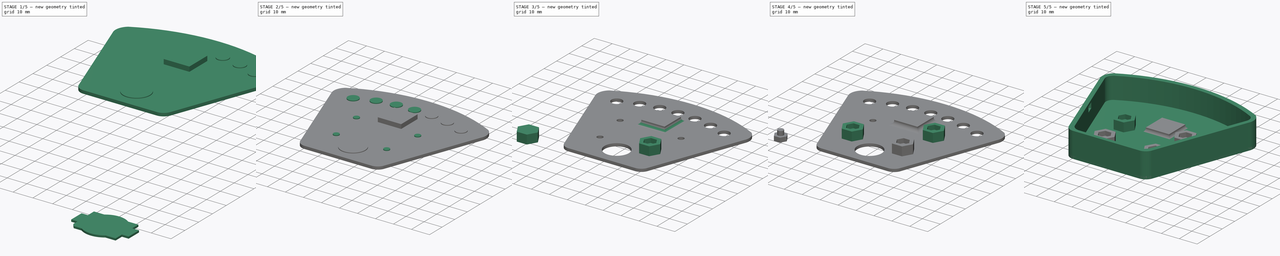
[diagram: build sequence overview — one tinted view per stage of 5, left to right]
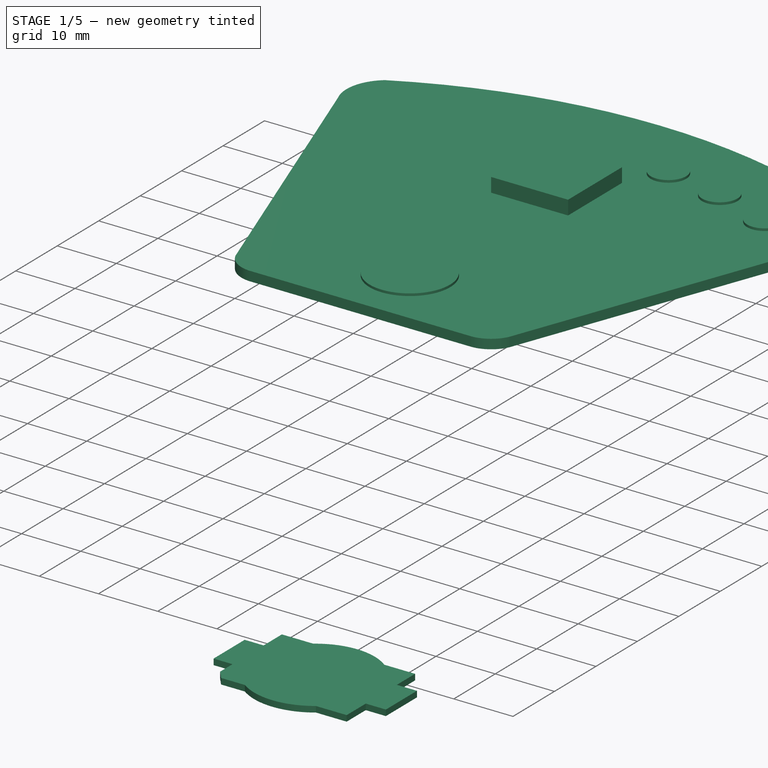
[diagram: stage 1 of 5 — iso view after this stage's code; geometry added in this stage tinted green]
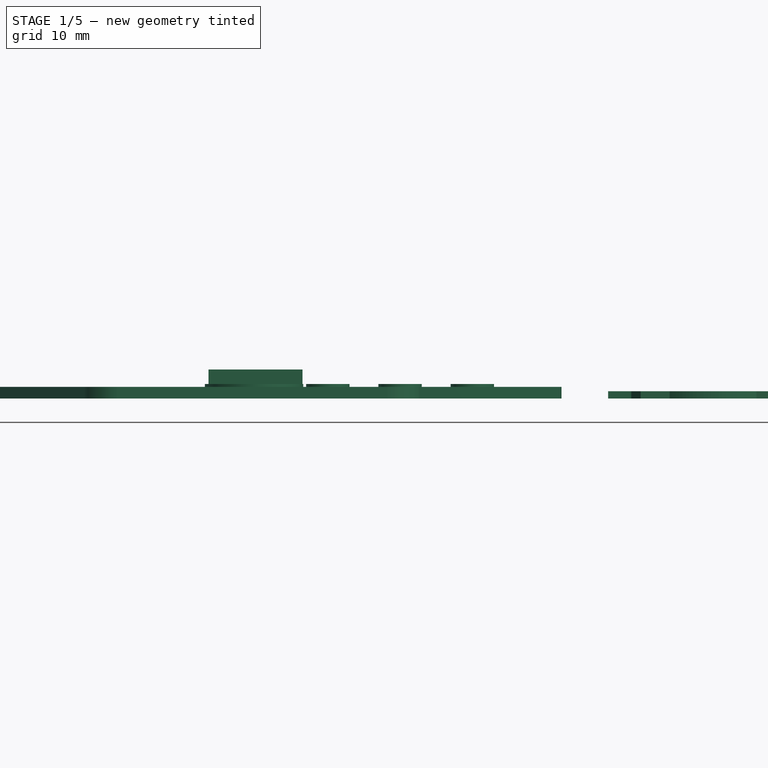
[diagram: stage 1 of 5 — front view after this stage's code; geometry added in this stage tinted green]
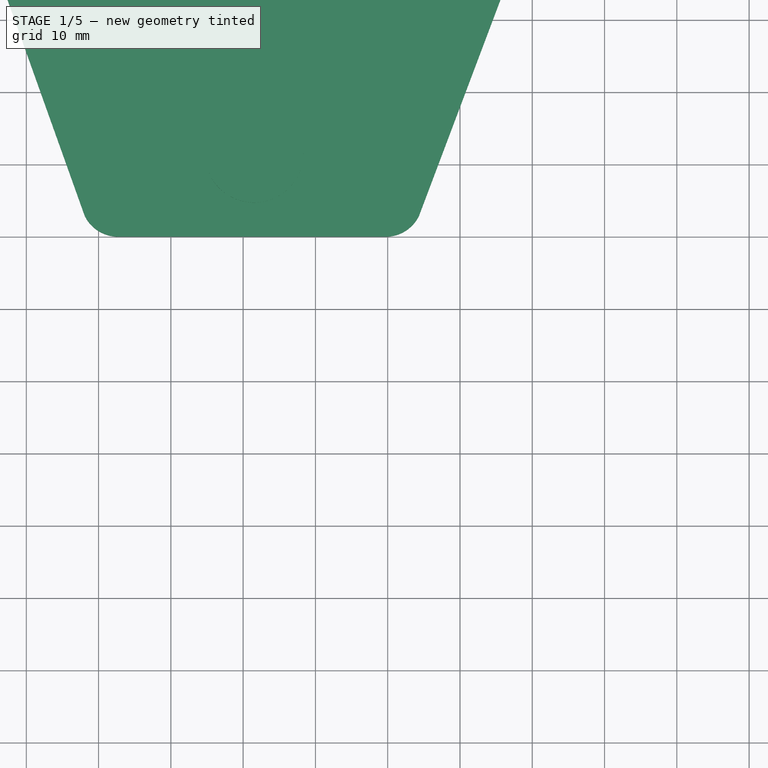
[diagram: stage 1 of 5 — top view after this stage's code; geometry added in this stage tinted green]
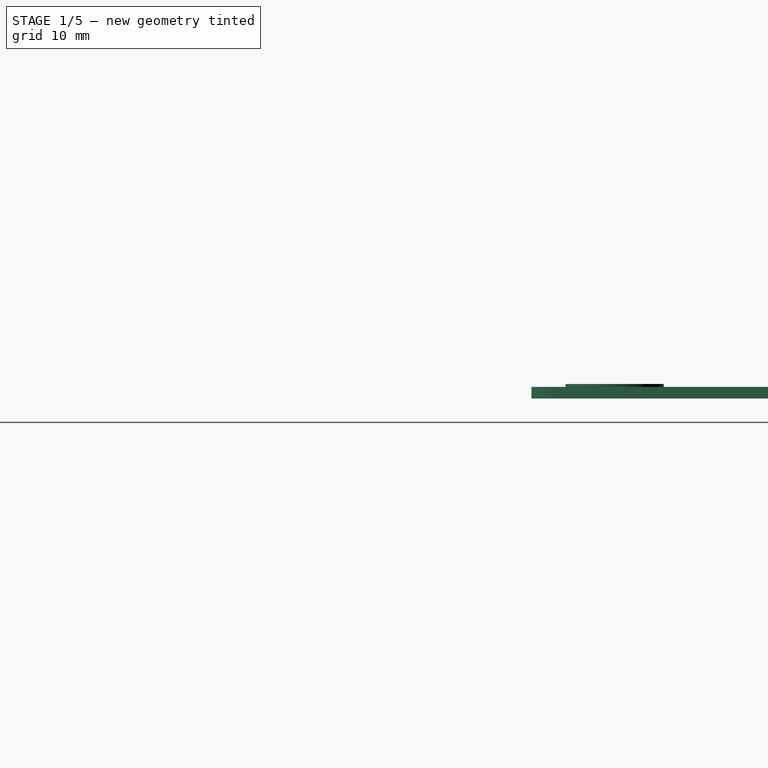
[diagram: stage 1 of 5 — right view after this stage's code; geometry added in this stage tinted green]
FCSTD DOCUMENT  (FreeCAD 1.0R38641 +678 (Git))
Label: catch_me_bcl_case
License: Creative Commons Attribution 4.0
LicenseURL: https://creativecommons.org/licenses/by/4.0/
objects: Part::Cylinder×16, Sketcher::SketchObject×12, PartDesign::Pad×12, PartDesign::Body×12, Part::Cut×7, Part::MultiFuse×7, Part::Box×3, TechDraw::DrawSVGTemplate×1, TechDraw::DrawViewDraft×1, TechDraw::DrawPage×1, Part::Fillet×1
note: 106 computed .brp shape members not serialized (recipe doc carries the construction recipe); baked Part::Feature solids carry a one-line shape summary decoded from their .brp

FEATURE [TechDraw::DrawViewDraft] DraftView
  Direction = (0.052071,0.019379,0.998455)
  FontSize = 12
  LineSpacing = 1
  LineStyle = Solid
  LineWidth = 0.35
  LockPosition = false
  OverrideStyle = false
  Rotation = 0
  ScaleType = 2
  Source = -> Fusion
  Symbol = <blob: 43248 chars omitted>
  X = 105
  Y = 148.5
FEATURE [TechDraw::DrawPage] Page
  KeepUpdated = true
  NextBalloonIndex = 1
  ProjectionType = 0
  Template = -> Template
  Views = -> [DraftView]
FEATURE [Sketcher::SketchObject] Sketch014
  ArcFitTolerance = 0
  AttachmentSupport = -> [XY_Plane014]
  FullyConstrained = true
  MakeInternals = false
  MapMode = 5
  sketch-geometry (8):
    g0: ArcOfCircle CenterX=6.36582 CenterY=56.3662 CenterZ=0 NormalX=0 NormalY=0 NormalZ=1 AngleXU=0 Radius=6.98955 StartAngle=2.23959 EndAngle=3.56726
    g1: ArcOfCircle CenterX=22.682 CenterY=5.10521 CenterZ=0 NormalX=0 NormalY=0 NormalZ=1 AngleXU=0 Radius=5.10735 StartAngle=3.59162 EndAngle=4.74137
    g2: LineSegment StartX=18.0831 StartY=2.88357 StartZ=0 EndX=0 EndY=53.48 EndZ=0
    g3: ArcOfCircle CenterX=41.701 CenterY=-14.9697 CenterZ=0 NormalX=0 NormalY=0 NormalZ=1 AngleXU=0 Radius=86.4574 StartAngle=1.09412 EndAngle=2.04747
    g4: ArcOfCircle CenterX=77.125 CenterY=56.3818 CenterZ=0 NormalX=0 NormalY=0 NormalZ=1 AngleXU=0 Radius=6.92257 StartAngle=5.85065 EndAngle=7.19385
    g5: LineSegment StartX=83.41 StartY=53.48 StartZ=0 EndX=64.33 EndY=2.88 EndZ=0
    g6: ArcOfCircle CenterX=59.7438 CenterY=5.087 CenterZ=0 NormalX=0 NormalY=0 NormalZ=1 AngleXU=0 Radius=5.08964 StartAngle=4.68021 EndAngle=5.83467
    g7: LineSegment StartX=22.83 StartY=-9e-16 StartZ=0 EndX=59.58 EndY=2.66e-14 EndZ=0
  constraints (29):
    c: DistanceY(g1) = 0
    c: DistanceX(g1) = 22.83
    c: DistanceY(g1) = 2.88357
    c: DistanceX(g1) = 18.0831
    c: Coincident(g1,g2)
    c: DistanceX(g2) = 0
    c: DistanceY(g2) = 53.48
    c: Coincident(g0,g2)
    c: DistanceY(g0) = 61.85
    c: DistanceX(g0) = 2.032
    c: Coincident(g0,g3)
    c: DistanceY(g3) = 61.85
    c: DistanceX(g3) = 81.37
    c: Coincident(g4,g3)
    c: DistanceY(g4) = 53.48
    c: DistanceX(g4) = 83.41
    c: Coincident(g4,g5)
    c: DistanceX(g5) = 64.33
    c: DistanceY(g5) = 2.88
    c: Coincident(g5,g6)
    c: DistanceX(g6) = 59.58
    c: DistanceY(g6) = 0
    c: Coincident(g1,g7)
    c: Coincident(g6,g7)
    c: Angle(g6) = 1.15446
    c: Angle(g1) = 1.14976
    c: Angle(g3) = 0.953349
    c: Angle(g0) = 1.32767
    c: Angle(g4) = 1.34321
FEATURE [PartDesign::Pad] Pad014
  Direction = (0,0,1)
  Length = 1.6
  Length2 = 10
  Profile = -> Sketch014
  ReferenceAxis = -> Sketch014 [N_Axis]
  Refine = true
  Suppressed = false
  Type = 0
FEATURE [Part::Cylinder] Cylinder020
  Angle = 360
  AttacherType = Attacher::AttachEngine3D
  FirstAngle = 0
  Height = 2
  Placement = pos=(51.71,59.3,0) rot=(0,0,1;0rad)
  Radius = 3
  SecondAngle = 0
FEATURE [Part::Cylinder] Cylinder021
  Angle = 360
  AttacherType = Attacher::AttachEngine3D
  FirstAngle = 0
  Height = 2
  Placement = pos=(61.71,57.4,0) rot=(0,0,1;0rad)
  Radius = 3
  SecondAngle = 0
FEATURE [Part::Cylinder] Cylinder022
  Angle = 360
  AttacherType = Attacher::AttachEngine3D
  FirstAngle = 0
  Height = 2
  Placement = pos=(71.71,54,0) rot=(0,0,1;0rad)
  Radius = 3
  SecondAngle = 0
FEATURE [Part::Cylinder] Cylinder023
  Angle = 360
  AttacherType = Attacher::AttachEngine3D
  FirstAngle = 0
  Height = 2
  Placement = pos=(41.51,11.5,0) rot=(0,0,1;0rad)
  Radius = 6.8
  SecondAngle = 0
FEATURE [Part::Box] Box001  label="Cube001"
  AttacherType = Attacher::AttachEngine3D
  Height = 3
  Length = 11
  Placement = pos=(36.21,41.1,0) rot=(0,0,1;0rad)
  Width = 11
FEATURE [Sketcher::SketchObject] Sketch015
  ArcFitTolerance = 1e-06
  FullyConstrained = true
  MakeInternals = false
  sketch-geometry (17):
    g0: LineSegment StartX=90.5 StartY=-105.8 StartZ=0 EndX=90.5 EndY=-98.3 EndZ=0
    g1: LineSegment StartX=90.5 StartY=-98.3 StartZ=0 EndX=93.7 EndY=-98.3 EndZ=0
    g2: LineSegment StartX=93.7 StartY=-98.3 StartZ=0 EndX=93.7 EndY=-93.9 EndZ=0
    g3: LineSegment StartX=116.2 StartY=-93.9 StartZ=0 EndX=116.2 EndY=-98.3 EndZ=0
    g4: LineSegment StartX=116.2 StartY=-98.3 StartZ=0 EndX=119.6 EndY=-98.3 EndZ=0
    g5: LineSegment StartX=119.6 StartY=-98.3 StartZ=0 EndX=119.6 EndY=-105.8 EndZ=0
    g6: LineSegment StartX=119.6 StartY=-105.8 StartZ=0 EndX=116.2 EndY=-105.8 EndZ=0
    g7: LineSegment StartX=116.2 StartY=-105.8 StartZ=0 EndX=116.2 EndY=-110.4 EndZ=0
    g8: LineSegment StartX=94.99 StartY=-110.4 StartZ=0 EndX=93.7 EndY=-108.8 EndZ=0
    g9: LineSegment StartX=93.7 StartY=-108.8 StartZ=0 EndX=93.7 EndY=-105.8 EndZ=0
    g10: LineSegment StartX=93.7 StartY=-105.8 StartZ=0 EndX=90.5 EndY=-105.8 EndZ=0
    g11: LineSegment StartX=93.7 StartY=-93.9 StartZ=0 EndX=99 EndY=-93.9 EndZ=0
    g12: LineSegment StartX=111 StartY=-93.9 StartZ=0 EndX=116.2 EndY=-93.9 EndZ=0
    g13: LineSegment StartX=116.2 StartY=-110.4 StartZ=0 EndX=111 EndY=-110.4 EndZ=0
    g14: LineSegment StartX=99 StartY=-110.4 StartZ=0 EndX=94.99 EndY=-110.4 EndZ=0
    g15: ArcOfCircle CenterX=105 CenterY=-101.9 CenterZ=0 NormalX=0 NormalY=0 NormalZ=1 AngleXU=0 Radius=10 StartAngle=0.927295 EndAngle=2.2143
    g16: ArcOfCircle CenterX=105 CenterY=-101.9 CenterZ=0 NormalX=0 NormalY=0 NormalZ=1 AngleXU=0 Radius=10.4043 StartAngle=4.09773 EndAngle=5.32705
  constraints (52):
    c: Vertical(g0)
    c: Coincident(g1,g0)
    c: Horizontal(g1)
    c: Vertical(g2)
    c: Vertical(g3)
    c: Horizontal(g4)
    c: Vertical(g5)
    c: Horizontal(g6)
    c: Vertical(g7)
    c: Coincident(g13,g7)
    c: Coincident(g8,g14)
    c: Vertical(g9)
    c: Coincident(g10,g0)
    c: Horizontal(g10)
    c: Coincident(g12,g3)
    c: Coincident(g3,g4)
    c: Coincident(g4,g5)
    c: Coincident(g5,g6)
    c: Coincident(g6,g7)
    c: Coincident(g2,g11)
    c: Coincident(g1,g2)
    c: Coincident(g9,g10)
    c: Coincident(g8,g9)
    c: Horizontal(g11)
    c: Horizontal(g12)
    c: Horizontal(g13)
    c: Horizontal(g14)
    c: Coincident(g11,g15)
    c: Coincident(g13,g16)
    c: Coincident(g14,g16)
    c: Coincident(g12,g15)
    c: DistanceX(g0) = 90.5
    c: DistanceY(g0) = -98.3
    c: DistanceX(g2) = 93.7
    c: DistanceY(g2) = -93.9
    c: DistanceX(g11) = 99
    c: DistanceX(g3) = 116.2
    c: DistanceX(g4) = 119.6
    c: DistanceY(g5) = -105.8
    c: DistanceX(g6) = 116.2
    c: DistanceY(g7) = -110.4
    c: DistanceY(g0) = -105.8
    c: DistanceX(g9) = 93.7
    c: DistanceY(g8) = -108.8
    c: DistanceX(g8) = 94.99
    c: DistanceY(g8) = -110.4
    c: DistanceX(g14) = 99
    c: DistanceY(g3) = -98.3
    c: Coincident(g15,g16)
    c: DistanceY(g15) = -101.9
    c: DistanceY(g12) = -93.9
    c: DistanceX(g15) = 105
FEATURE [PartDesign::Pad] Pad015
  Direction = (0,0,1)
  Length = 1
  Length2 = 10
  Profile = -> Sketch015
  ReferenceAxis = -> Sketch015 [N_Axis]
  Refine = true
  Suppressed = false
  Type = 0
FEATURE [Part::Box] Box002  label="Cube002"
  AttacherType = Attacher::AttachEngine3D
  Height = 4
  Length = 13
  Placement = pos=(35.21,40.1,0) rot=(0,0,1;0rad)
  Width = 13
FEATURE [Part::MultiFuse] Fusion010
  Shapes = -> [Box002,Body014]
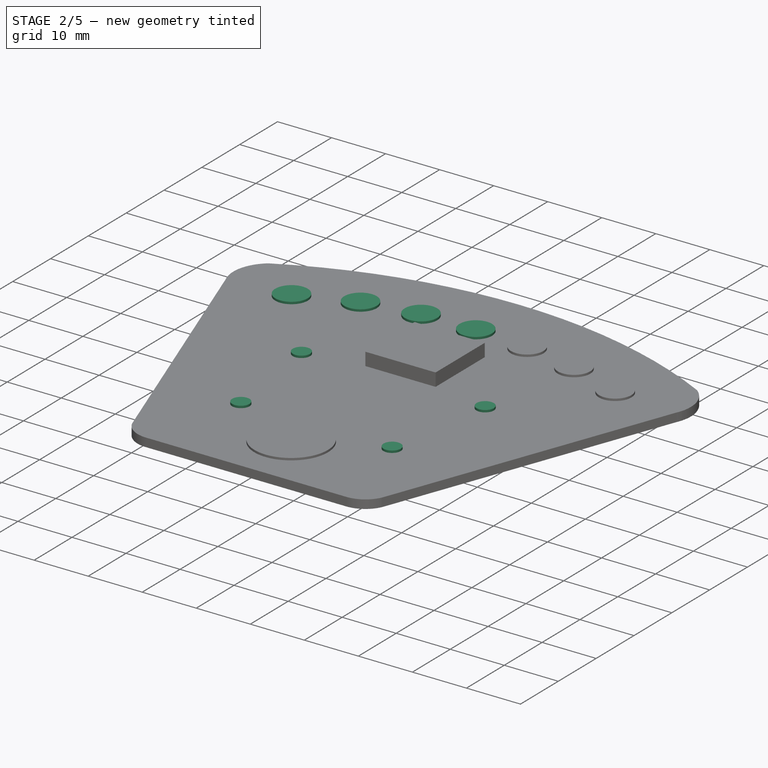
[diagram: stage 2 of 5 — iso view after this stage's code; geometry added in this stage tinted green]
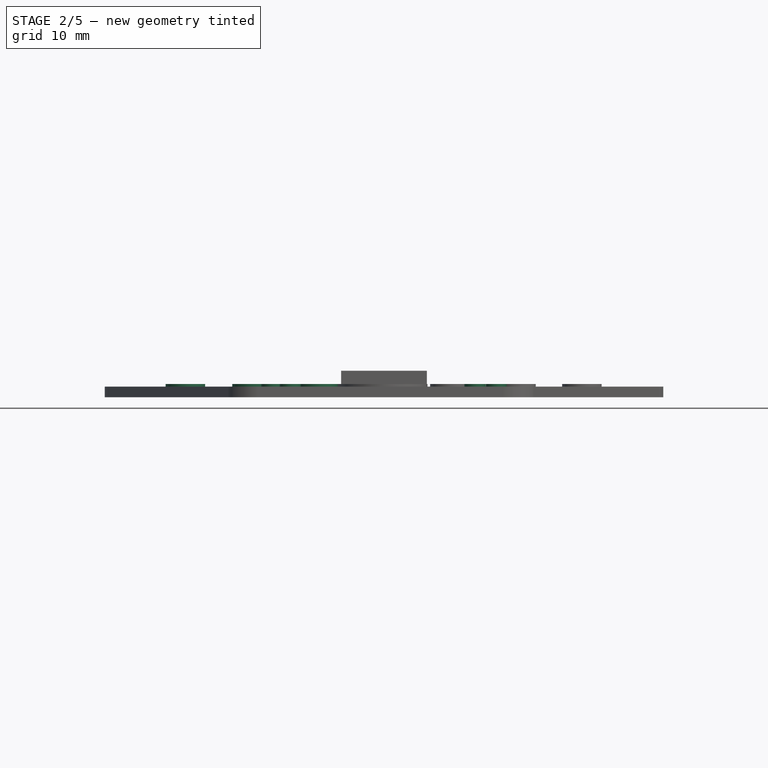
[diagram: stage 2 of 5 — front view after this stage's code; geometry added in this stage tinted green]
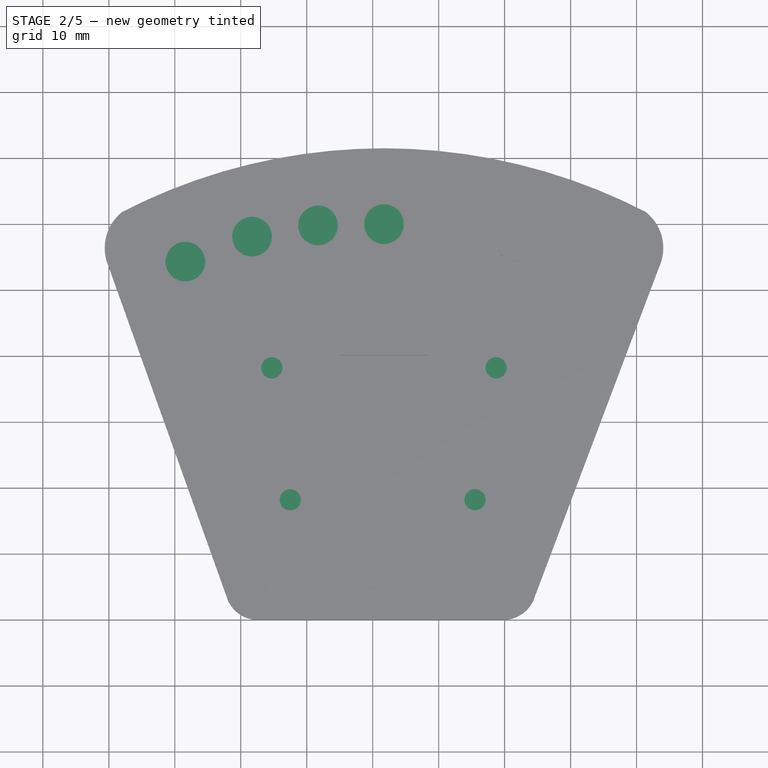
[diagram: stage 2 of 5 — top view after this stage's code; geometry added in this stage tinted green]
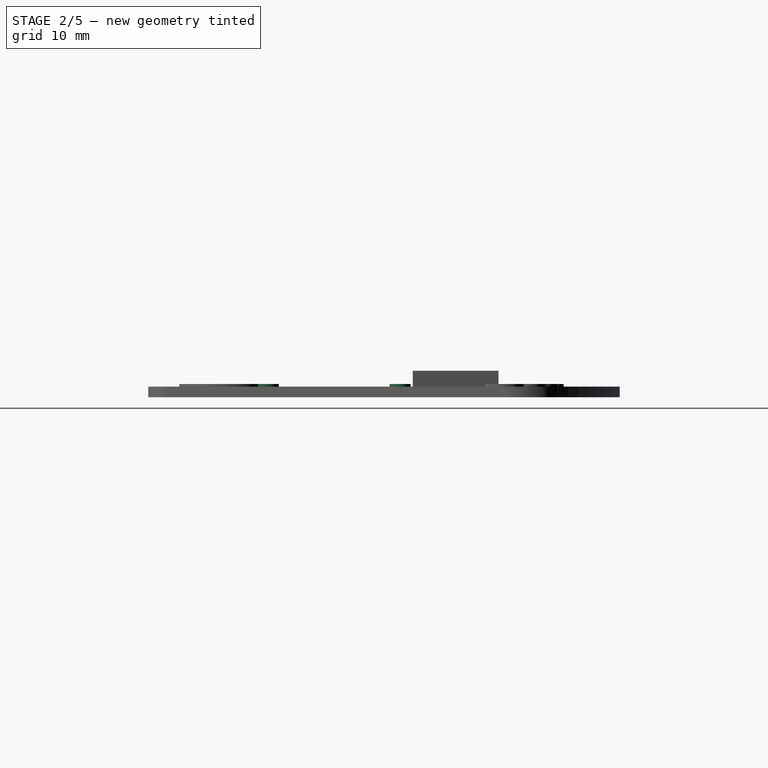
[diagram: stage 2 of 5 — right view after this stage's code; geometry added in this stage tinted green]
FEATURE [PartDesign::Body] Body014
  AllowCompound = false
  Group = -> [Sketch014,Pad014]
  Origin = -> Origin014
  Tip = -> Pad014
FEATURE [Part::Cylinder] Cylinder012
  Angle = 360
  AttacherType = Attacher::AttachEngine3D
  FirstAngle = 0
  Height = 2
  Placement = pos=(24.71,38.2,0) rot=(0,0,1;0rad)
  Radius = 1.6
  SecondAngle = 0
FEATURE [Part::Cylinder] Cylinder013
  Angle = 360
  AttacherType = Attacher::AttachEngine3D
  FirstAngle = 0
  Height = 2
  Placement = pos=(58.71,38.2,0) rot=(0,0,1;0rad)
  Radius = 1.6
  SecondAngle = 0
FEATURE [Part::Cylinder] Cylinder014
  Angle = 360
  AttacherType = Attacher::AttachEngine3D
  FirstAngle = 0
  Height = 2
  Placement = pos=(27.5,18.2,0) rot=(0,0,1;0rad)
  Radius = 1.6
  SecondAngle = 0
FEATURE [Part::Cylinder] Cylinder015
  Angle = 360
  AttacherType = Attacher::AttachEngine3D
  FirstAngle = 0
  Height = 2
  Placement = pos=(55.5,18.2,0) rot=(0,0,1;0rad)
  Radius = 1.6
  SecondAngle = 0
FEATURE [Part::Cylinder] Cylinder016
  Angle = 360
  AttacherType = Attacher::AttachEngine3D
  FirstAngle = 0
  Height = 2
  Placement = pos=(11.6,54.3,0) rot=(0,0,1;0rad)
  Radius = 3
  SecondAngle = 0
FEATURE [Part::Cylinder] Cylinder017
  Angle = 360
  AttacherType = Attacher::AttachEngine3D
  FirstAngle = 0
  Height = 2
  Placement = pos=(21.71,58.1,0) rot=(0,0,1;0rad)
  Radius = 3
  SecondAngle = 0
FEATURE [Part::Cylinder] Cylinder018
  Angle = 360
  AttacherType = Attacher::AttachEngine3D
  FirstAngle = 0
  Height = 2
  Placement = pos=(31.71,59.8,0) rot=(0,0,1;0rad)
  Radius = 3
  SecondAngle = 0
FEATURE [Part::Cylinder] Cylinder019
  Angle = 360
  AttacherType = Attacher::AttachEngine3D
  FirstAngle = 0
  Height = 2
  Placement = pos=(41.71,60,0) rot=(0,0,1;0rad)
  Radius = 3
  SecondAngle = 0
FEATURE [PartDesign::Body] Body015
  AllowCompound = false
  Group = -> [Sketch015,Pad015]
  Origin = -> Origin015
  Placement = pos=(-63.5,132,0) rot=(0,0,1;0rad)
  Tip = -> Pad015
FEATURE [Part::MultiFuse] Fusion009
  Shapes = -> [Cylinder012,Cylinder013,Cylinder014,Cylinder015,Cylinder016,Cylinder017,Cylinder018,Cylinder019,Cylinder020,Cylinder021,Cylinder022,Cylinder023,Box001,Body015]
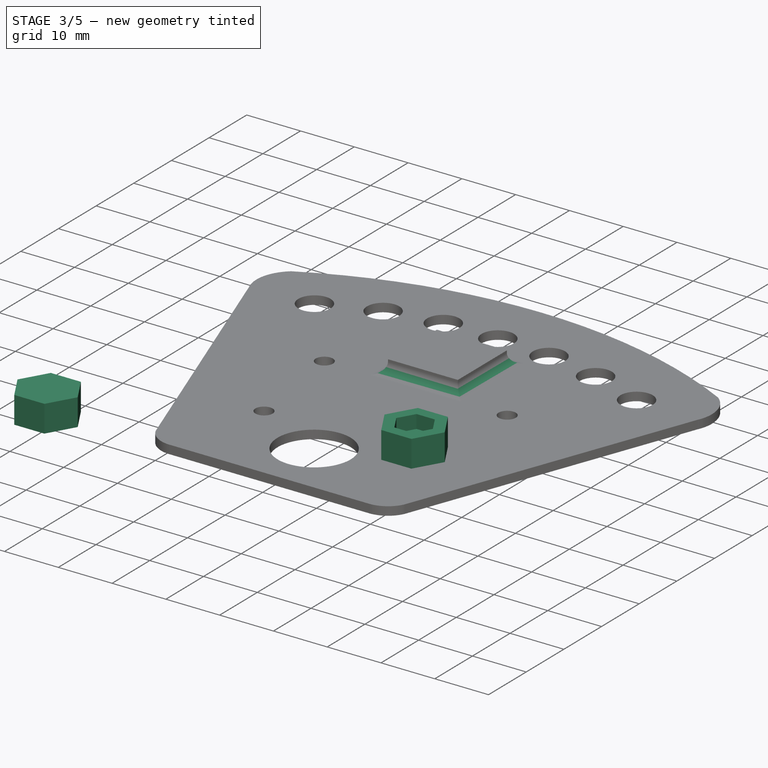
[diagram: stage 3 of 5 — iso view after this stage's code; geometry added in this stage tinted green]
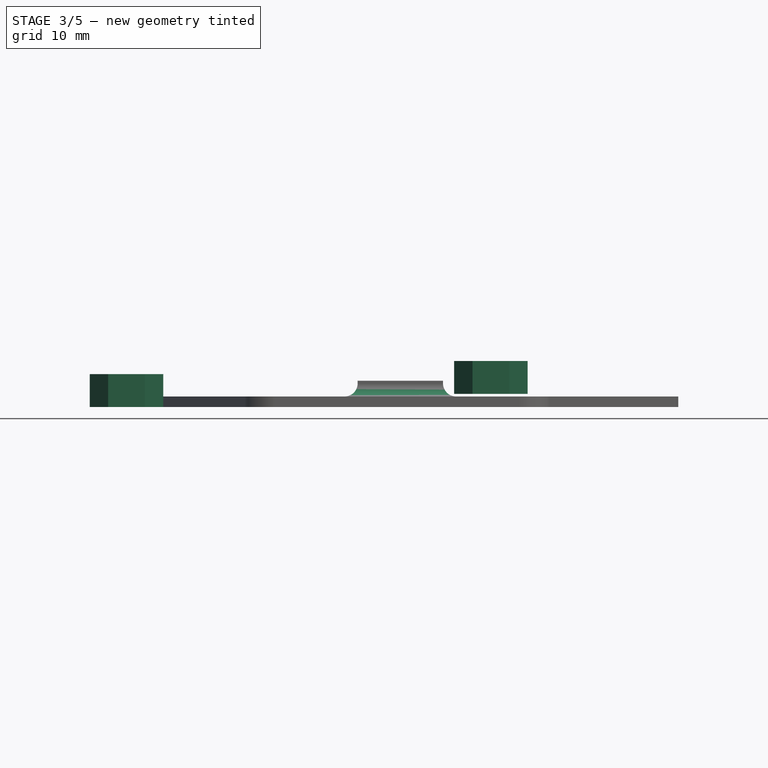
[diagram: stage 3 of 5 — front view after this stage's code; geometry added in this stage tinted green]
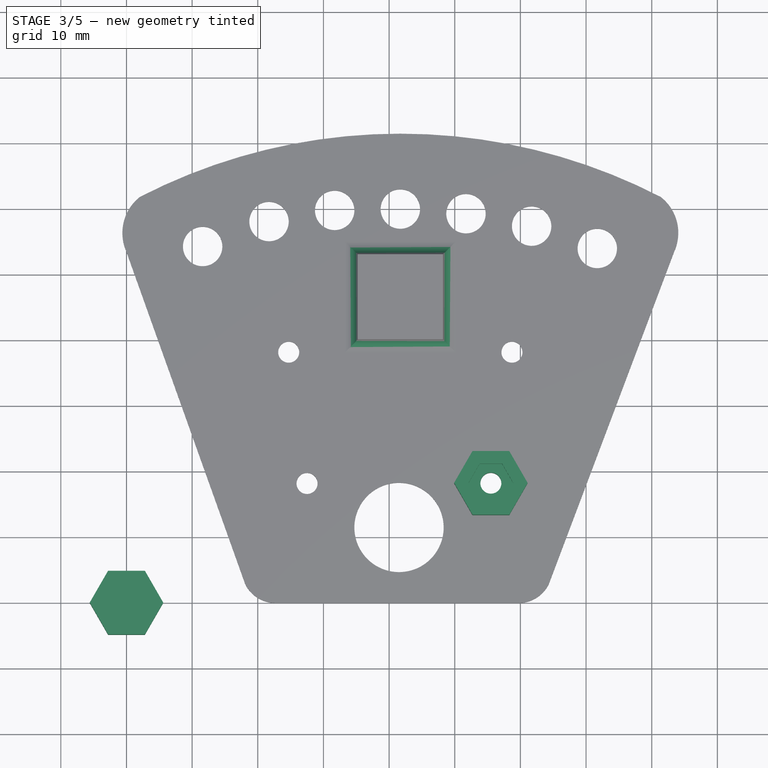
[diagram: stage 3 of 5 — top view after this stage's code; geometry added in this stage tinted green]
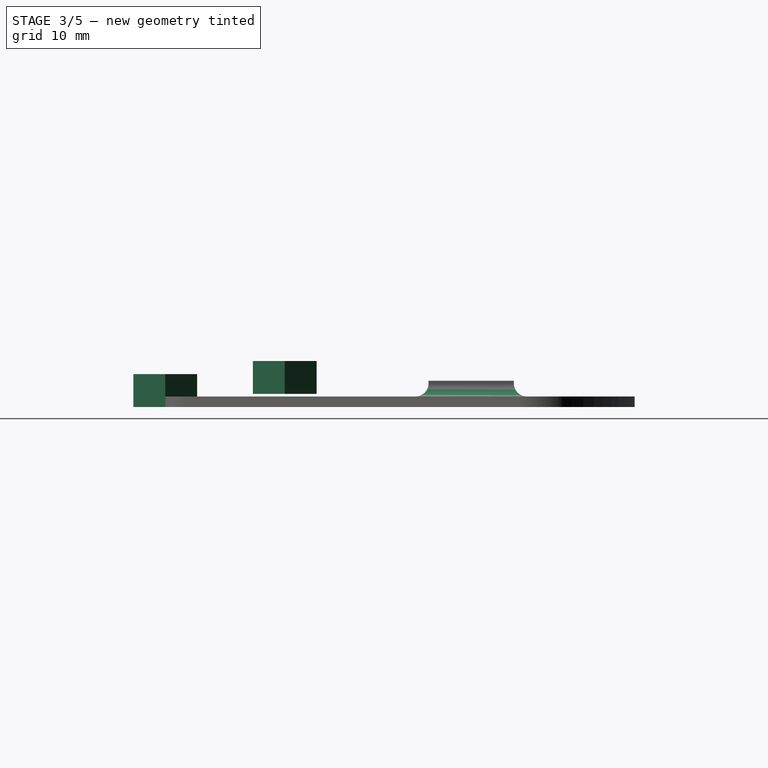
[diagram: stage 3 of 5 — right view after this stage's code; geometry added in this stage tinted green]
FEATURE [Part::Cylinder] Cylinder010
  Angle = 360
  AttacherType = Attacher::AttachEngine3D
  FirstAngle = 0
  Height = 5
  Radius = 1.6
  SecondAngle = 0
FEATURE [Sketcher::SketchObject] Sketch010
  ArcFitTolerance = 1e-06
  AttachmentSupport = -> [XY_Plane010]
  FullyConstrained = true
  MakeInternals = false
  MapMode = 5
  sketch-geometry (7):
    g0: LineSegment StartX=-5.6 StartY=0 StartZ=0 EndX=-2.8 EndY=-4.84974 EndZ=0
    g1: LineSegment StartX=-2.8 StartY=-4.84974 StartZ=0 EndX=2.8 EndY=-4.84974 EndZ=0
    g2: LineSegment StartX=2.8 StartY=-4.84974 StartZ=0 EndX=5.6 EndY=5.4294e-12 EndZ=0
    g3: LineSegment StartX=5.6 StartY=5.4294e-12 StartZ=0 EndX=2.8 EndY=4.84974 EndZ=0
    g4: LineSegment StartX=2.8 StartY=4.84974 StartZ=0 EndX=-2.8 EndY=4.84974 EndZ=0
    g5: LineSegment StartX=-2.8 StartY=4.84974 StartZ=0 EndX=-5.6 EndY=0 EndZ=0
    g6: Circle [constr] CenterX=0 CenterY=0 CenterZ=0 NormalX=0 NormalY=0 NormalZ=1 AngleXU=0 Radius=5.6
  constraints (16):
    c: Coincident(g0,g1)
    c: Coincident(g1,g2)
    c: Coincident(g2,g3)
    c: Coincident(g3,g4)
    c: Coincident(g4,g5)
    c: Coincident(g5,g0)
    c: Equal(g0, g1-g5) x5
    c: PointOnObject(g0,g6)
    c: PointOnObject(g1,g6)
    c: PointOnObject(g2,g6)
    c: PointOnObject(g3,g6)
    c: PointOnObject(g4,g6)
    c: PointOnObject(g5,g6)
    c: Coincident(g6,g-1)
    c: PointOnObject(g5,g-1)
    c: Radius(g6) = 5.6
FEATURE [PartDesign::Pad] Pad010
  Direction = (0,0,1)
  Length = 5
  Length2 = 10
  Profile = -> Sketch010
  ReferenceAxis = -> Sketch010 [N_Axis]
  Refine = true
  Suppressed = false
  Type = 0
FEATURE [PartDesign::Body] Body010
  AllowCompound = false
  Group = -> [Sketch010,Pad010]
  Origin = -> Origin010
  Tip = -> Pad010
FEATURE [Sketcher::SketchObject] Sketch011
  ArcFitTolerance = 1e-06
  AttachmentSupport = -> [XY_Plane011]
  FullyConstrained = true
  MakeInternals = false
  MapMode = 5
  sketch-geometry (7):
    g0: LineSegment StartX=-3.4 StartY=0 StartZ=0 EndX=-1.7 EndY=-2.94449 EndZ=0
    g1: LineSegment StartX=-1.7 StartY=-2.94449 StartZ=0 EndX=1.7 EndY=-2.94449 EndZ=0
    g2: LineSegment StartX=1.7 StartY=-2.94449 StartZ=0 EndX=3.4 EndY=1.1422e-12 EndZ=0
    g3: LineSegment StartX=3.4 StartY=1.142e-12 StartZ=0 EndX=1.7 EndY=2.94449 EndZ=0
    g4: LineSegment StartX=1.7 StartY=2.94449 StartZ=0 EndX=-1.7 EndY=2.94449 EndZ=0
    g5: LineSegment StartX=-1.7 StartY=2.94449 StartZ=0 EndX=-3.4 EndY=0 EndZ=0
    g6: Circle [constr] CenterX=0 CenterY=0 CenterZ=0 NormalX=0 NormalY=0 NormalZ=1 AngleXU=0 Radius=3.4
  constraints (16):
    c: Coincident(g0,g1)
    c: Coincident(g1,g2)
    c: Coincident(g2,g3)
    c: Coincident(g3,g4)
    c: Coincident(g4,g5)
    c: Coincident(g5,g0)
    c: Equal(g0, g1-g5) x5
    c: PointOnObject(g0,g6)
    c: PointOnObject(g1,g6)
    c: PointOnObject(g2,g6)
    c: PointOnObject(g3,g6)
    c: PointOnObject(g4,g6)
    c: PointOnObject(g5,g6)
    c: Coincident(g6,g-1)
    c: PointOnObject(g5,g-1)
    c: Radius(g6) = 3.4
FEATURE [PartDesign::Pad] Pad011
  Direction = (0,0,1)
  Length = 2.5
  Length2 = 10
  Profile = -> Sketch011
  ReferenceAxis = -> Sketch011 [N_Axis]
  Refine = true
  Suppressed = false
  Type = 0
FEATURE [Part::Cylinder] Cylinder011
  Angle = 360
  AttacherType = Attacher::AttachEngine3D
  FirstAngle = 0
  Height = 5
  Radius = 1.6
  SecondAngle = 0
FEATURE [Sketcher::SketchObject] Sketch012
  ArcFitTolerance = 1e-06
  AttachmentSupport = -> [XY_Plane012]
  FullyConstrained = true
  MakeInternals = false
  MapMode = 5
  sketch-geometry (7):
    g0: LineSegment StartX=-5.6 StartY=0 StartZ=0 EndX=-2.8 EndY=-4.84974 EndZ=0
    g1: LineSegment StartX=-2.8 StartY=-4.84974 StartZ=0 EndX=2.8 EndY=-4.84974 EndZ=0
    g2: LineSegment StartX=2.8 StartY=-4.84974 StartZ=0 EndX=5.6 EndY=5.4294e-12 EndZ=0
    g3: LineSegment StartX=5.6 StartY=5.4294e-12 StartZ=0 EndX=2.8 EndY=4.84974 EndZ=0
    g4: LineSegment StartX=2.8 StartY=4.84974 StartZ=0 EndX=-2.8 EndY=4.84974 EndZ=0
    g5: LineSegment StartX=-2.8 StartY=4.84974 StartZ=0 EndX=-5.6 EndY=0 EndZ=0
    g6: Circle [constr] CenterX=0 CenterY=0 CenterZ=0 NormalX=0 NormalY=0 NormalZ=1 AngleXU=0 Radius=5.6
  constraints (16):
    c: Coincident(g0,g1)
    c: Coincident(g1,g2)
    c: Coincident(g2,g3)
    c: Coincident(g3,g4)
    c: Coincident(g4,g5)
    c: Coincident(g5,g0)
    c: Equal(g0, g1-g5) x5
    c: PointOnObject(g0,g6)
    c: PointOnObject(g1,g6)
    c: PointOnObject(g2,g6)
    c: PointOnObject(g3,g6)
    c: PointOnObject(g4,g6)
    c: PointOnObject(g5,g6)
    c: Coincident(g6,g-1)
    c: PointOnObject(g5,g-1)
    c: Radius(g6) = 5.6
FEATURE [PartDesign::Pad] Pad012
  Direction = (0,0,1)
  Length = 5
  Length2 = 10
  Profile = -> Sketch012
  ReferenceAxis = -> Sketch012 [N_Axis]
  Refine = true
  Suppressed = false
  Type = 0
FEATURE [PartDesign::Body] Body012
  AllowCompound = false
  Group = -> [Sketch012,Pad012]
  Origin = -> Origin012
  Tip = -> Pad012
FEATURE [Sketcher::SketchObject] Sketch013
  ArcFitTolerance = 1e-06
  AttachmentSupport = -> [XY_Plane013]
  FullyConstrained = true
  MakeInternals = false
  MapMode = 5
  sketch-geometry (7):
    g0: LineSegment StartX=-3.4 StartY=0 StartZ=0 EndX=-1.7 EndY=-2.94449 EndZ=0
    g1: LineSegment StartX=-1.7 StartY=-2.94449 StartZ=0 EndX=1.7 EndY=-2.94449 EndZ=0
    g2: LineSegment StartX=1.7 StartY=-2.94449 StartZ=0 EndX=3.4 EndY=1.1422e-12 EndZ=0
    g3: LineSegment StartX=3.4 StartY=1.1422e-12 StartZ=0 EndX=1.7 EndY=2.94449 EndZ=0
    g4: LineSegment StartX=1.7 StartY=2.94449 StartZ=0 EndX=-1.7 EndY=2.94449 EndZ=0
    g5: LineSegment StartX=-1.7 StartY=2.94449 StartZ=0 EndX=-3.4 EndY=0 EndZ=0
    g6: Circle [constr] CenterX=0 CenterY=0 CenterZ=0 NormalX=0 NormalY=0 NormalZ=1 AngleXU=0 Radius=3.4
  constraints (16):
    c: Coincident(g0,g1)
    c: Coincident(g1,g2)
    c: Coincident(g2,g3)
    c: Coincident(g3,g4)
    c: Coincident(g4,g5)
    c: Coincident(g5,g0)
    c: Equal(g0, g1-g5) x5
    c: PointOnObject(g0,g6)
    c: PointOnObject(g1,g6)
    c: PointOnObject(g2,g6)
    c: PointOnObject(g3,g6)
    c: PointOnObject(g4,g6)
    c: PointOnObject(g5,g6)
    c: Coincident(g6,g-1)
    c: PointOnObject(g5,g-1)
    c: Radius(g6) = 3.4
FEATURE [PartDesign::Pad] Pad013
  Direction = (0,0,1)
  Length = 2.5
  Length2 = 10
  Profile = -> Sketch013
  ReferenceAxis = -> Sketch013 [N_Axis]
  Refine = true
  Suppressed = false
  Type = 0
FEATURE [PartDesign::Body] Body013
  AllowCompound = false
  Group = -> [Sketch013,Pad013]
  Origin = -> Origin013
  Placement = pos=(0,0,2.5) rot=(0,0,1;0rad)
  Tip = -> Pad013
FEATURE [Part::MultiFuse] Fusion008
  Shapes = -> [Cylinder011,Body013]
FEATURE [Part::Cut] Cut009
  Base = -> Body012
  Placement = pos=(55.5,18.2,2) rot=(0,0,1;0rad)
  Tool = -> Fusion008
FEATURE [Part::Cut] Cut010
  Base = -> Fusion010
  Tool = -> Fusion009
FEATURE [Part::Fillet] Fillet  label="Cover"
  Base = -> Cut010
  EdgeLinks = -> Cut010 [Edge130,Edge131,Edge132,Edge133]
  Edges = 4 edges r=2: [Edge130,Edge131,Edge132,Edge133]
note: 1 file-system path scrubbed to <path> (originals preserved in the JSON sidecar)
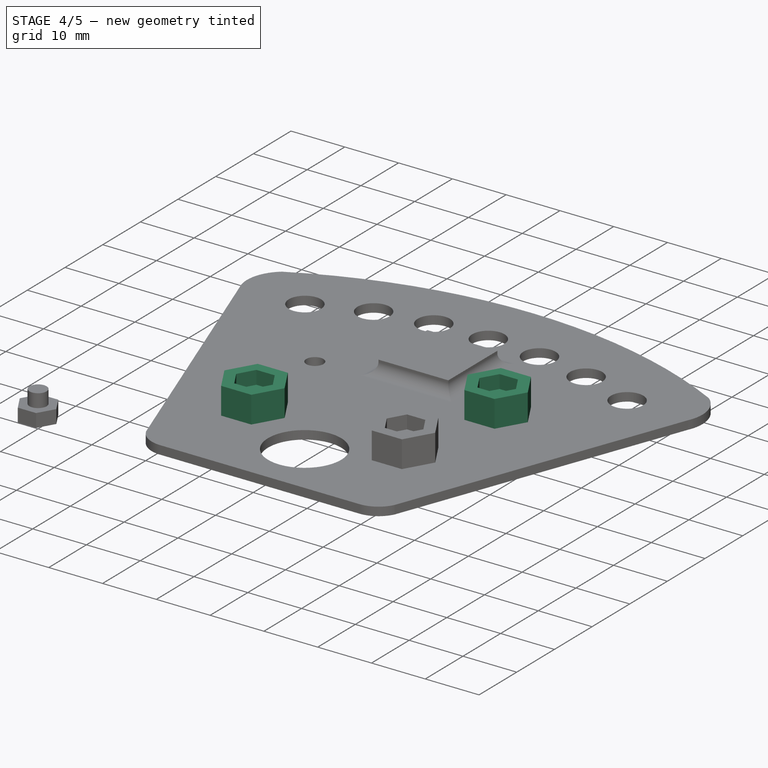
[diagram: stage 4 of 5 — iso view after this stage's code; geometry added in this stage tinted green]
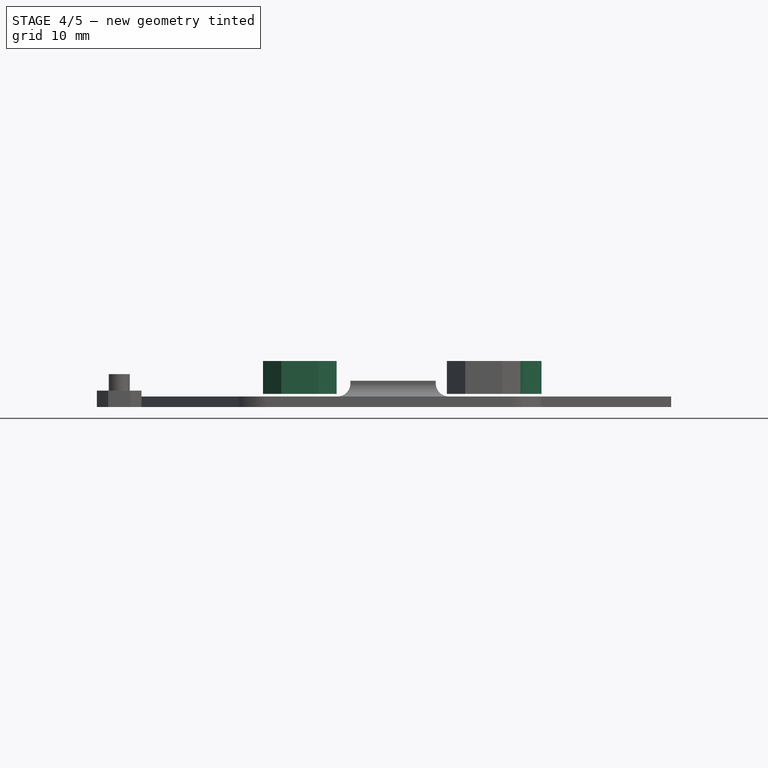
[diagram: stage 4 of 5 — front view after this stage's code; geometry added in this stage tinted green]
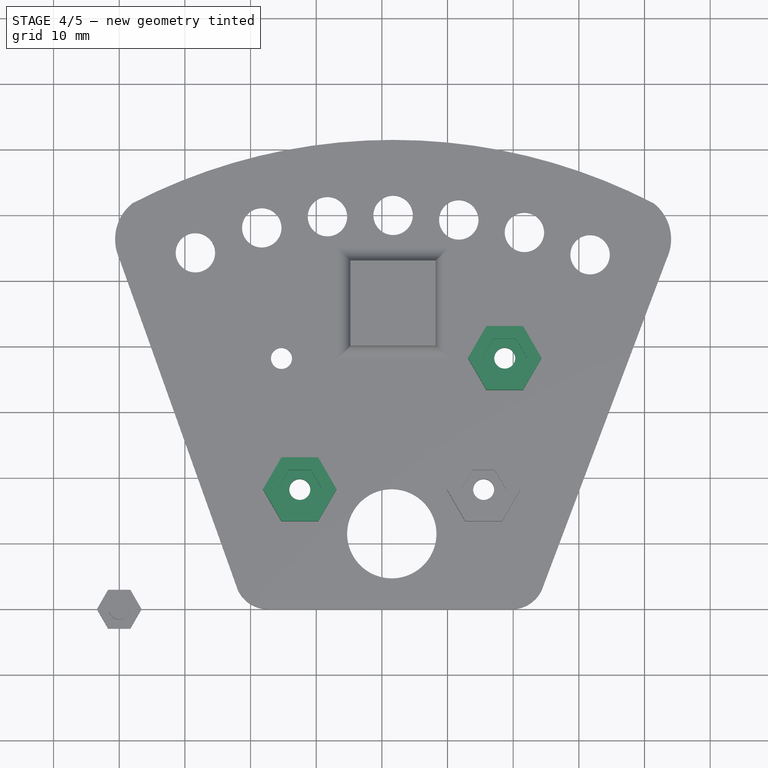
[diagram: stage 4 of 5 — top view after this stage's code; geometry added in this stage tinted green]
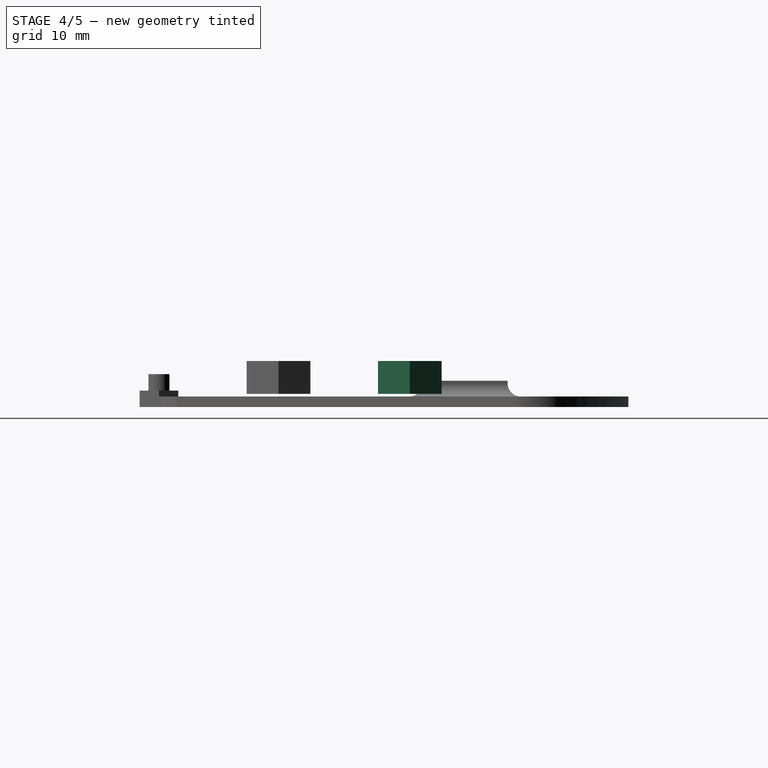
[diagram: stage 4 of 5 — right view after this stage's code; geometry added in this stage tinted green]
FEATURE [PartDesign::Body] Body006
  AllowCompound = false
  Group = -> [Sketch006,Pad006]
  Origin = -> Origin006
  Tip = -> Pad006
FEATURE [Part::Cylinder] Cylinder008
  Angle = 360
  AttacherType = Attacher::AttachEngine3D
  FirstAngle = 0
  Height = 5
  Radius = 1.6
  SecondAngle = 0
FEATURE [Sketcher::SketchObject] Sketch007
  ArcFitTolerance = 1e-06
  AttachmentSupport = -> [XY_Plane007]
  FullyConstrained = true
  MakeInternals = false
  MapMode = 5
  sketch-geometry (7):
    g0: LineSegment StartX=-3.4 StartY=0 StartZ=0 EndX=-1.7 EndY=-2.94449 EndZ=0
    g1: LineSegment StartX=-1.7 StartY=-2.94449 StartZ=0 EndX=1.7 EndY=-2.94449 EndZ=0
    g2: LineSegment StartX=1.7 StartY=-2.94449 StartZ=0 EndX=3.4 EndY=1.1422e-12 EndZ=0
    g3: LineSegment StartX=3.4 StartY=1.142e-12 StartZ=0 EndX=1.7 EndY=2.94449 EndZ=0
    g4: LineSegment StartX=1.7 StartY=2.94449 StartZ=0 EndX=-1.7 EndY=2.94449 EndZ=0
    g5: LineSegment StartX=-1.7 StartY=2.94449 StartZ=0 EndX=-3.4 EndY=0 EndZ=0
    g6: Circle [constr] CenterX=0 CenterY=0 CenterZ=0 NormalX=0 NormalY=0 NormalZ=1 AngleXU=0 Radius=3.4
  constraints (16):
    c: Coincident(g0,g1)
    c: Coincident(g1,g2)
    c: Coincident(g2,g3)
    c: Coincident(g3,g4)
    c: Coincident(g4,g5)
    c: Coincident(g5,g0)
    c: Equal(g0, g1-g5) x5
    c: PointOnObject(g0,g6)
    c: PointOnObject(g1,g6)
    c: PointOnObject(g2,g6)
    c: PointOnObject(g3,g6)
    c: PointOnObject(g4,g6)
    c: PointOnObject(g5,g6)
    c: Coincident(g6,g-1)
    c: PointOnObject(g5,g-1)
    c: Radius(g6) = 3.4
FEATURE [PartDesign::Pad] Pad007
  Direction = (0,0,1)
  Length = 2.5
  Length2 = 10
  Profile = -> Sketch007
  ReferenceAxis = -> Sketch007 [N_Axis]
  Refine = true
  Suppressed = false
  Type = 0
FEATURE [Part::Cylinder] Cylinder009
  Angle = 360
  AttacherType = Attacher::AttachEngine3D
  FirstAngle = 0
  Height = 5
  Radius = 1.6
  SecondAngle = 0
FEATURE [Sketcher::SketchObject] Sketch008
  ArcFitTolerance = 1e-06
  AttachmentSupport = -> [XY_Plane008]
  FullyConstrained = true
  MakeInternals = false
  MapMode = 5
  sketch-geometry (7):
    g0: LineSegment StartX=-5.6 StartY=0 StartZ=0 EndX=-2.8 EndY=-4.84974 EndZ=0
    g1: LineSegment StartX=-2.8 StartY=-4.84974 StartZ=0 EndX=2.8 EndY=-4.84974 EndZ=0
    g2: LineSegment StartX=2.8 StartY=-4.84974 StartZ=0 EndX=5.6 EndY=5.4294e-12 EndZ=0
    g3: LineSegment StartX=5.6 StartY=5.4294e-12 StartZ=0 EndX=2.8 EndY=4.84974 EndZ=0
    g4: LineSegment StartX=2.8 StartY=4.84974 StartZ=0 EndX=-2.8 EndY=4.84974 EndZ=0
    g5: LineSegment StartX=-2.8 StartY=4.84974 StartZ=0 EndX=-5.6 EndY=0 EndZ=0
    g6: Circle [constr] CenterX=0 CenterY=0 CenterZ=0 NormalX=0 NormalY=0 NormalZ=1 AngleXU=0 Radius=5.6
  constraints (16):
    c: Coincident(g0,g1)
    c: Coincident(g1,g2)
    c: Coincident(g2,g3)
    c: Coincident(g3,g4)
    c: Coincident(g4,g5)
    c: Coincident(g5,g0)
    c: Equal(g0, g1-g5) x5
    c: PointOnObject(g0,g6)
    c: PointOnObject(g1,g6)
    c: PointOnObject(g2,g6)
    c: PointOnObject(g3,g6)
    c: PointOnObject(g4,g6)
    c: PointOnObject(g5,g6)
    c: Coincident(g6,g-1)
    c: PointOnObject(g5,g-1)
    c: Radius(g6) = 5.6
FEATURE [PartDesign::Pad] Pad008
  Direction = (0,0,1)
  Length = 5
  Length2 = 10
  Profile = -> Sketch008
  ReferenceAxis = -> Sketch008 [N_Axis]
  Refine = true
  Suppressed = false
  Type = 0
FEATURE [PartDesign::Body] Body008
  AllowCompound = false
  Group = -> [Sketch008,Pad008]
  Origin = -> Origin008
  Tip = -> Pad008
FEATURE [Sketcher::SketchObject] Sketch009
  ArcFitTolerance = 1e-06
  AttachmentSupport = -> [XY_Plane009]
  FullyConstrained = true
  MakeInternals = false
  MapMode = 5
  sketch-geometry (7):
    g0: LineSegment StartX=-3.4 StartY=0 StartZ=0 EndX=-1.7 EndY=-2.94449 EndZ=0
    g1: LineSegment StartX=-1.7 StartY=-2.94449 StartZ=0 EndX=1.7 EndY=-2.94449 EndZ=0
    g2: LineSegment StartX=1.7 StartY=-2.94449 StartZ=0 EndX=3.4 EndY=1.1422e-12 EndZ=0
    g3: LineSegment StartX=3.4 StartY=1.142e-12 StartZ=0 EndX=1.7 EndY=2.94449 EndZ=0
    g4: LineSegment StartX=1.7 StartY=2.94449 StartZ=0 EndX=-1.7 EndY=2.94449 EndZ=0
    g5: LineSegment StartX=-1.7 StartY=2.94449 StartZ=0 EndX=-3.4 EndY=0 EndZ=0
    g6: Circle [constr] CenterX=0 CenterY=0 CenterZ=0 NormalX=0 NormalY=0 NormalZ=1 AngleXU=0 Radius=3.4
  constraints (16):
    c: Coincident(g0,g1)
    c: Coincident(g1,g2)
    c: Coincident(g2,g3)
    c: Coincident(g3,g4)
    c: Coincident(g4,g5)
    c: Coincident(g5,g0)
    c: Equal(g0, g1-g5) x5
    c: PointOnObject(g0,g6)
    c: PointOnObject(g1,g6)
    c: PointOnObject(g2,g6)
    c: PointOnObject(g3,g6)
    c: PointOnObject(g4,g6)
    c: PointOnObject(g5,g6)
    c: Coincident(g6,g-1)
    c: PointOnObject(g5,g-1)
    c: Radius(g6) = 3.4
FEATURE [PartDesign::Pad] Pad009
  Direction = (0,0,1)
  Length = 2.5
  Length2 = 10
  Profile = -> Sketch009
  ReferenceAxis = -> Sketch009 [N_Axis]
  Refine = true
  Suppressed = false
  Type = 0
FEATURE [PartDesign::Body] Body009
  AllowCompound = false
  Group = -> [Sketch009,Pad009]
  Origin = -> Origin009
  Placement = pos=(0,0,2.5) rot=(0,0,1;0rad)
  Tip = -> Pad009
FEATURE [Part::MultiFuse] Fusion006
  Shapes = -> [Cylinder009,Body009]
FEATURE [Part::Cut] Cut007
  Base = -> Body008
  Placement = pos=(58.71,38.2,2) rot=(0,0,1;0rad)
  Tool = -> Fusion006
FEATURE [PartDesign::Body] Body011
  AllowCompound = false
  Group = -> [Sketch011,Pad011]
  Origin = -> Origin011
  Placement = pos=(0,0,2.5) rot=(0,0,1;0rad)
  Tip = -> Pad011
FEATURE [Part::MultiFuse] Fusion007
  Shapes = -> [Cylinder010,Body011]
FEATURE [Part::Cut] Cut008
  Base = -> Body010
  Placement = pos=(27.5,18.2,2) rot=(0,0,1;0rad)
  Tool = -> Fusion007
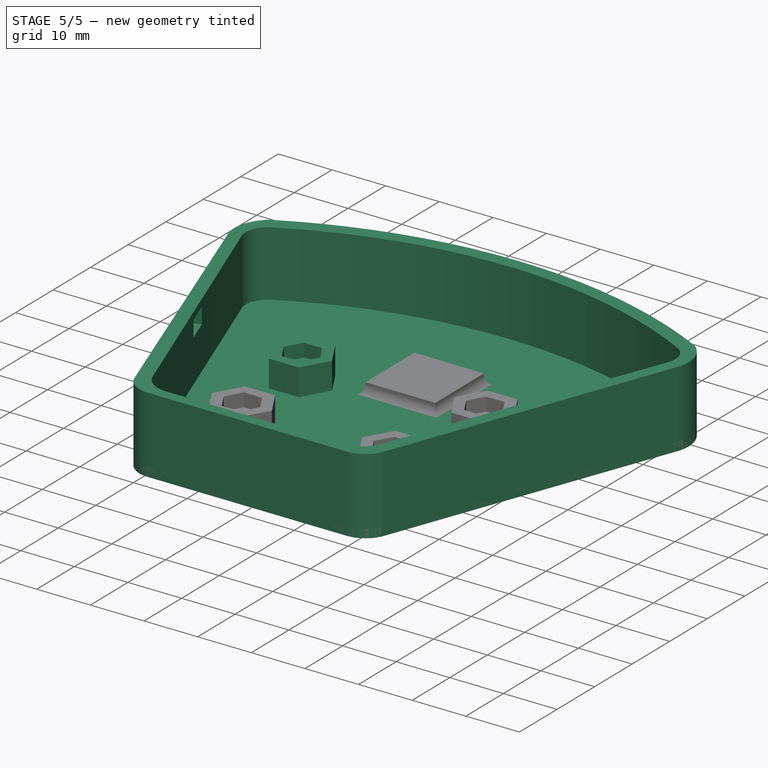
[diagram: stage 5 of 5 — iso view after this stage's code; geometry added in this stage tinted green]
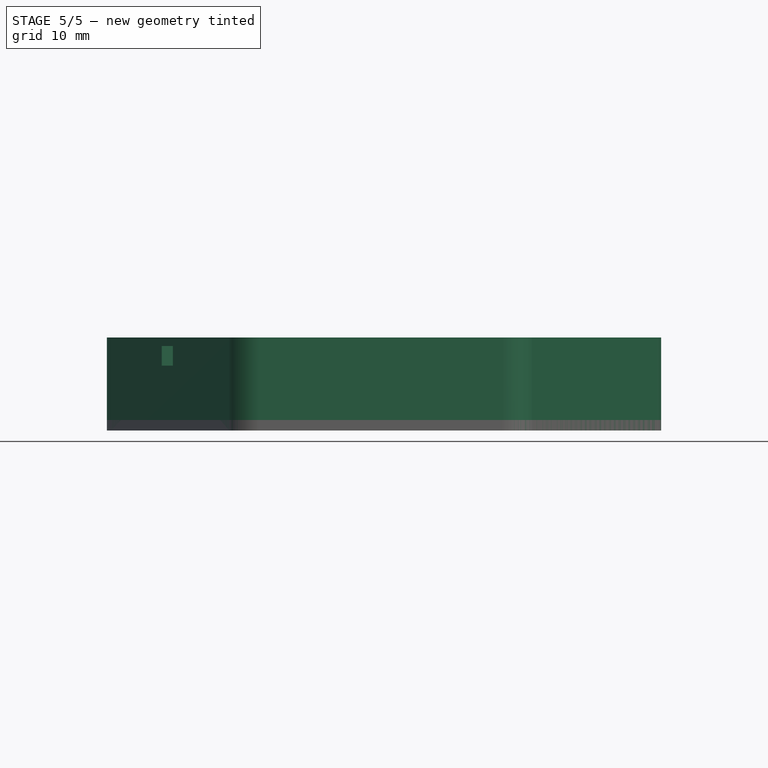
[diagram: stage 5 of 5 — front view after this stage's code; geometry added in this stage tinted green]
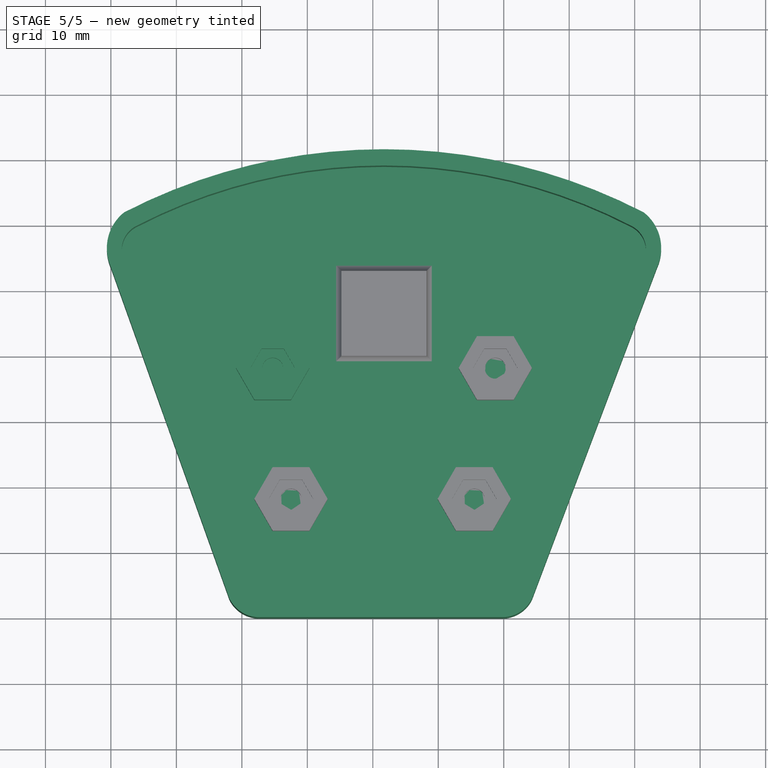
[diagram: stage 5 of 5 — top view after this stage's code; geometry added in this stage tinted green]
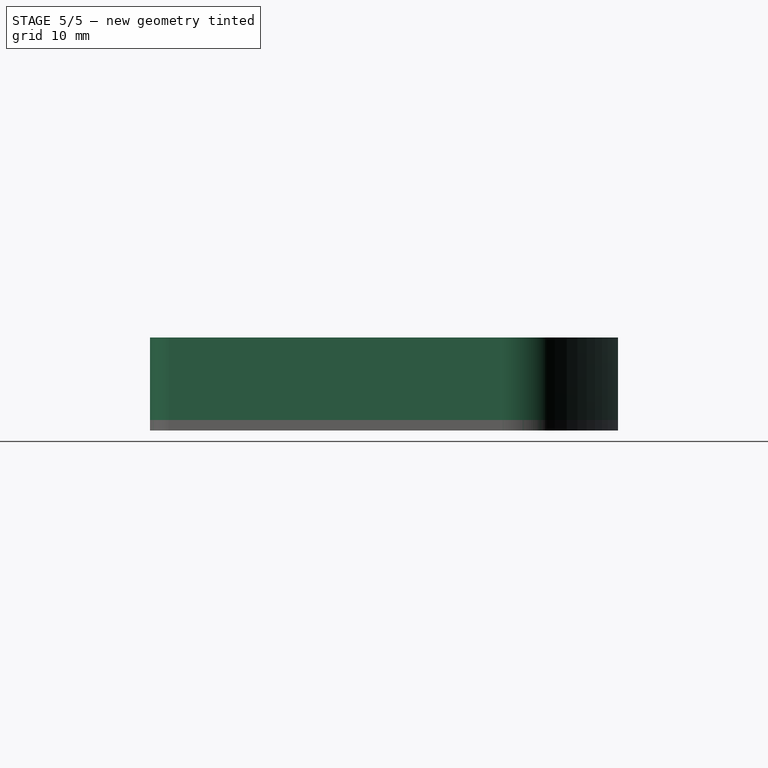
[diagram: stage 5 of 5 — right view after this stage's code; geometry added in this stage tinted green]
FEATURE [Sketcher::SketchObject] Sketch
  ArcFitTolerance = 0
  AttachmentSupport = -> [XY_Plane]
  FullyConstrained = true
  MakeInternals = false
  MapMode = 5
  sketch-geometry (8):
    g0: ArcOfCircle CenterX=3.74393 CenterY=54.1314 CenterZ=0 NormalX=0 NormalY=0 NormalZ=1 AngleXU=0 Radius=4.09195 StartAngle=2.00244 EndAngle=3.557
    g1: ArcOfCircle CenterX=22.682 CenterY=5.10521 CenterZ=0 NormalX=0 NormalY=0 NormalZ=1 AngleXU=0 Radius=5.10735 StartAngle=3.59162 EndAngle=4.74137
    g2: LineSegment StartX=18.0831 StartY=2.88357 StartZ=0 EndX=0 EndY=52.48 EndZ=0
    g3: ArcOfCircle CenterX=39.7025 CenterY=-15.1015 CenterZ=0 NormalX=0 NormalY=0 NormalZ=1 AngleXU=0 Radius=82.1018 StartAngle=1.09412 EndAngle=2.04747
    g4: ArcOfCircle CenterX=75.6079 CenterY=54.1112 CenterZ=0 NormalX=0 NormalY=0 NormalZ=1 AngleXU=0 Radius=4.13269 StartAngle=5.87743 EndAngle=7.41268
    g5: LineSegment StartX=79.405 StartY=52.48 StartZ=0 EndX=60.3289 EndY=2.88 EndZ=0
    g6: ArcOfCircle CenterX=55.7442 CenterY=5.08459 CenterZ=0 NormalX=0 NormalY=0 NormalZ=1 AngleXU=0 Radius=5.08717 StartAngle=4.6805 EndAngle=5.83497
    g7: LineSegment StartX=22.83 StartY=-9e-16 StartZ=0 EndX=55.582 EndY=1.68665e-11 EndZ=0
  constraints (29):
    c: DistanceY(g1) = 0
    c: DistanceX(g1) = 22.83
    c: DistanceY(g1) = 2.88357
    c: DistanceX(g1) = 18.0831
    c: Coincident(g1,g2)
    c: DistanceX(g2) = 0
    c: DistanceY(g2) = 52.48
    c: Coincident(g0,g2)
    c: DistanceY(g0) = 57.848
    c: DistanceX(g0) = 2.032
    c: Coincident(g0,g3)
    c: DistanceY(g3) = 57.848
    c: DistanceX(g3) = 77.373
    c: Coincident(g4,g3)
    c: DistanceY(g4) = 52.48
    c: DistanceX(g4) = 79.405
    c: Coincident(g4,g5)
    c: DistanceX(g5) = 60.3289
    c: DistanceY(g5) = 2.88
    c: Coincident(g5,g6)
    c: DistanceX(g6) = 55.582
    c: DistanceY(g6) = 0
    c: Coincident(g1,g7)
    c: Coincident(g6,g7)
    c: Angle(g6) = 1.15446
    c: Angle(g1) = 1.14976
    c: Angle(g3) = 0.953349
    c: Angle(g0) = 1.55456
    c: Angle(g4) = 1.53525
FEATURE [PartDesign::Pad] Pad
  Direction = (0,0,1)
  Length = 16
  Length2 = 10
  Profile = -> Sketch
  ReferenceAxis = -> Sketch [N_Axis]
  Refine = true
  Suppressed = false
  Type = 0
FEATURE [PartDesign::Body] Body
  AllowCompound = false
  Group = -> [Sketch,Pad]
  Origin = -> Origin
  Placement = pos=(2,2,2) rot=(0,0,1;0rad)
  Tip = -> Pad
FEATURE [TechDraw::DrawSVGTemplate] Template
  EditableTexts = approval_person=B. Hecate; creator=A. Nemesis; date_of_issue=13. 12. 2025.; document_type=Component Drawing; general_tolerances=ISO 2768-m; identification_number=DN; language_code=EN; part_material=Stainless steel Mat.No. 1.4301; revision_index=AAA; scale=1 : 1; sheet_number=1 / 1; title=kutija_za_catch_me
  Height = 297
  Orientation = 0
  Template = <path>
  Width = 210
FEATURE [Sketcher::SketchObject] Sketch001
  ArcFitTolerance = 0
  AttachmentSupport = -> [XY_Plane001]
  FullyConstrained = true
  MakeInternals = false
  MapMode = 5
  sketch-geometry (8):
    g0: ArcOfCircle CenterX=6.36582 CenterY=56.3662 CenterZ=0 NormalX=0 NormalY=0 NormalZ=1 AngleXU=0 Radius=6.98955 StartAngle=2.23959 EndAngle=3.56726
    g1: ArcOfCircle CenterX=22.682 CenterY=5.10521 CenterZ=0 NormalX=0 NormalY=0 NormalZ=1 AngleXU=0 Radius=5.10735 StartAngle=3.59162 EndAngle=4.74137
    g2: LineSegment StartX=18.0831 StartY=2.88357 StartZ=0 EndX=0 EndY=53.48 EndZ=0
    g3: ArcOfCircle CenterX=41.701 CenterY=-14.9697 CenterZ=0 NormalX=0 NormalY=0 NormalZ=1 AngleXU=0 Radius=86.4574 StartAngle=1.09412 EndAngle=2.04747
    g4: ArcOfCircle CenterX=77.125 CenterY=56.3818 CenterZ=0 NormalX=0 NormalY=0 NormalZ=1 AngleXU=0 Radius=6.92257 StartAngle=5.85065 EndAngle=7.19385
    g5: LineSegment StartX=83.41 StartY=53.48 StartZ=0 EndX=64.33 EndY=2.88 EndZ=0
    g6: ArcOfCircle CenterX=59.7438 CenterY=5.087 CenterZ=0 NormalX=0 NormalY=0 NormalZ=1 AngleXU=0 Radius=5.08964 StartAngle=4.68021 EndAngle=5.83467
    g7: LineSegment StartX=22.83 StartY=-9e-16 StartZ=0 EndX=59.58 EndY=2.66e-14 EndZ=0
  constraints (29):
    c: DistanceY(g1) = 0
    c: DistanceX(g1) = 22.83
    c: DistanceY(g1) = 2.88357
    c: DistanceX(g1) = 18.0831
    c: Coincident(g1,g2)
    c: DistanceX(g2) = 0
    c: DistanceY(g2) = 53.48
    c: Coincident(g0,g2)
    c: DistanceY(g0) = 61.85
    c: DistanceX(g0) = 2.032
    c: Coincident(g0,g3)
    c: DistanceY(g3) = 61.85
    c: DistanceX(g3) = 81.37
    c: Coincident(g4,g3)
    c: DistanceY(g4) = 53.48
    c: DistanceX(g4) = 83.41
    c: Coincident(g4,g5)
    c: DistanceX(g5) = 64.33
    c: DistanceY(g5) = 2.88
    c: Coincident(g5,g6)
    c: DistanceX(g6) = 59.58
    c: DistanceY(g6) = 0
    c: Coincident(g1,g7)
    c: Coincident(g6,g7)
    c: Angle(g6) = 1.15446
    c: Angle(g1) = 1.14976
    c: Angle(g3) = 0.953349
    c: Angle(g0) = 1.32767
    c: Angle(g4) = 1.34321
FEATURE [PartDesign::Pad] Pad001
  Direction = (0,0,1)
  Length = 14.2
  Length2 = 10
  Profile = -> Sketch001
  ReferenceAxis = -> Sketch001 [N_Axis]
  Refine = true
  Suppressed = false
  Type = 0
FEATURE [PartDesign::Body] Body001
  AllowCompound = false
  Group = -> [Sketch001,Pad001]
  Origin = -> Origin001
  Tip = -> Pad001
FEATURE [Part::Cut] Cut
  Base = -> Body001
  Tool = -> Body
FEATURE [Part::Box] Box  label="Cube"
  AttacherType = Attacher::AttachEngine3D
  Height = 3
  Length = 2.5
  Placement = pos=(9.4,27,9.9) rot=(0,0,1;0.349066rad)
  Width = 5
FEATURE [Part::Cut] Cut005
  Base = -> Cut
  Tool = -> Box
FEATURE [Sketcher::SketchObject] Sketch006
  ArcFitTolerance = 1e-06
  AttachmentSupport = -> [XY_Plane006]
  FullyConstrained = true
  MakeInternals = false
  MapMode = 5
  sketch-geometry (7):
    g0: LineSegment StartX=-5.6 StartY=0 StartZ=0 EndX=-2.8 EndY=-4.84974 EndZ=0
    g1: LineSegment StartX=-2.8 StartY=-4.84974 StartZ=0 EndX=2.8 EndY=-4.84974 EndZ=0
    g2: LineSegment StartX=2.8 StartY=-4.84974 StartZ=0 EndX=5.6 EndY=5.4294e-12 EndZ=0
    g3: LineSegment StartX=5.6 StartY=5.4294e-12 StartZ=0 EndX=2.8 EndY=4.84974 EndZ=0
    g4: LineSegment StartX=2.8 StartY=4.84974 StartZ=0 EndX=-2.8 EndY=4.84974 EndZ=0
    g5: LineSegment StartX=-2.8 StartY=4.84974 StartZ=0 EndX=-5.6 EndY=0 EndZ=0
    g6: Circle [constr] CenterX=0 CenterY=0 CenterZ=0 NormalX=0 NormalY=0 NormalZ=1 AngleXU=0 Radius=5.6
  constraints (16):
    c: Coincident(g0,g1)
    c: Coincident(g1,g2)
    c: Coincident(g2,g3)
    c: Coincident(g3,g4)
    c: Coincident(g4,g5)
    c: Coincident(g5,g0)
    c: Equal(g0, g1-g5) x5
    c: PointOnObject(g0,g6)
    c: PointOnObject(g1,g6)
    c: PointOnObject(g2,g6)
    c: PointOnObject(g3,g6)
    c: PointOnObject(g4,g6)
    c: PointOnObject(g5,g6)
    c: Coincident(g6,g-1)
    c: PointOnObject(g5,g-1)
    c: Radius(g6) = 5.6
FEATURE [PartDesign::Pad] Pad006
  Direction = (0,0,1)
  Length = 5
  Length2 = 10
  Profile = -> Sketch006
  ReferenceAxis = -> Sketch006 [N_Axis]
  Refine = true
  Suppressed = false
  Type = 0
FEATURE [PartDesign::Body] Body007
  AllowCompound = false
  Group = -> [Sketch007,Pad007]
  Origin = -> Origin007
  Placement = pos=(0,0,2.5) rot=(0,0,1;0rad)
  Tip = -> Pad007
FEATURE [Part::MultiFuse] Fusion005
  Shapes = -> [Cylinder008,Body007]
FEATURE [Part::Cut] Cut006
  Base = -> Body006
  Placement = pos=(24.71,38.2,2) rot=(0,0,1;0rad)
  Tool = -> Fusion005
FEATURE [Part::MultiFuse] Fusion  label="box"
  Shapes = -> [Cut009,Cut005,Cut006,Cut007,Cut008]
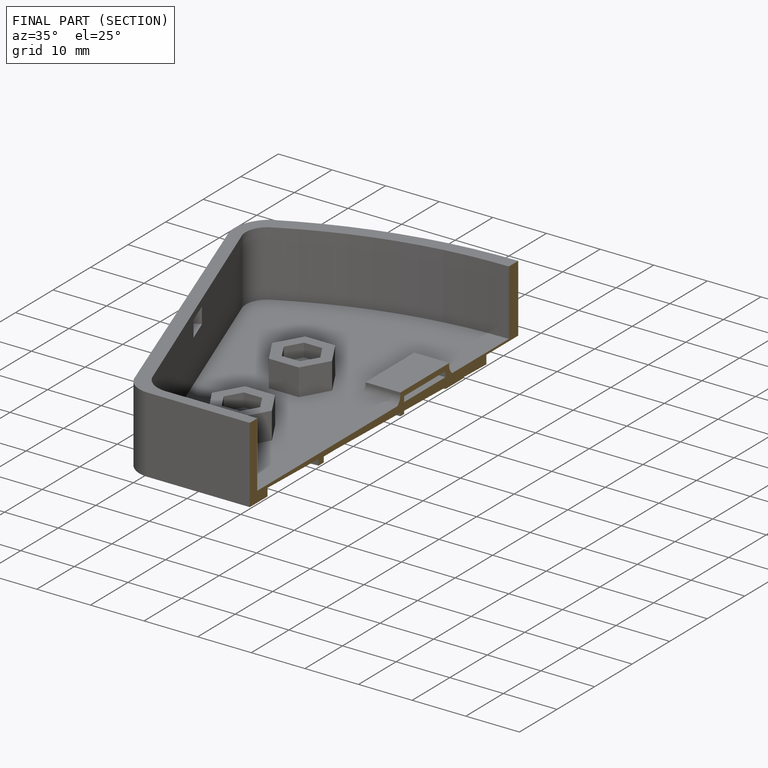
[diagram: finished part — half-section view (interior)]
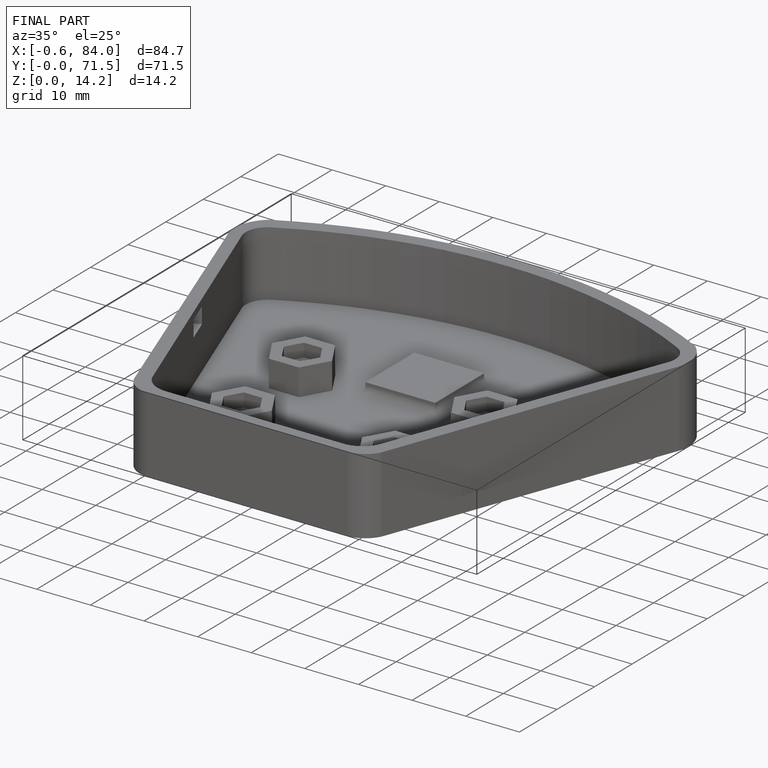
[diagram: finished part — iso view with bounding-box wireframe]
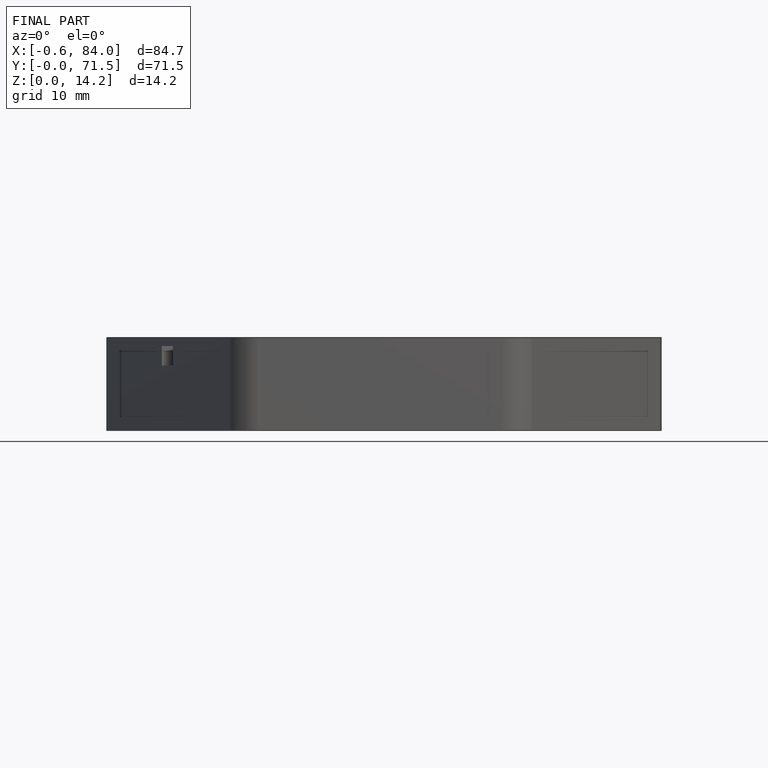
[diagram: finished part — front view with bounding-box wireframe]
